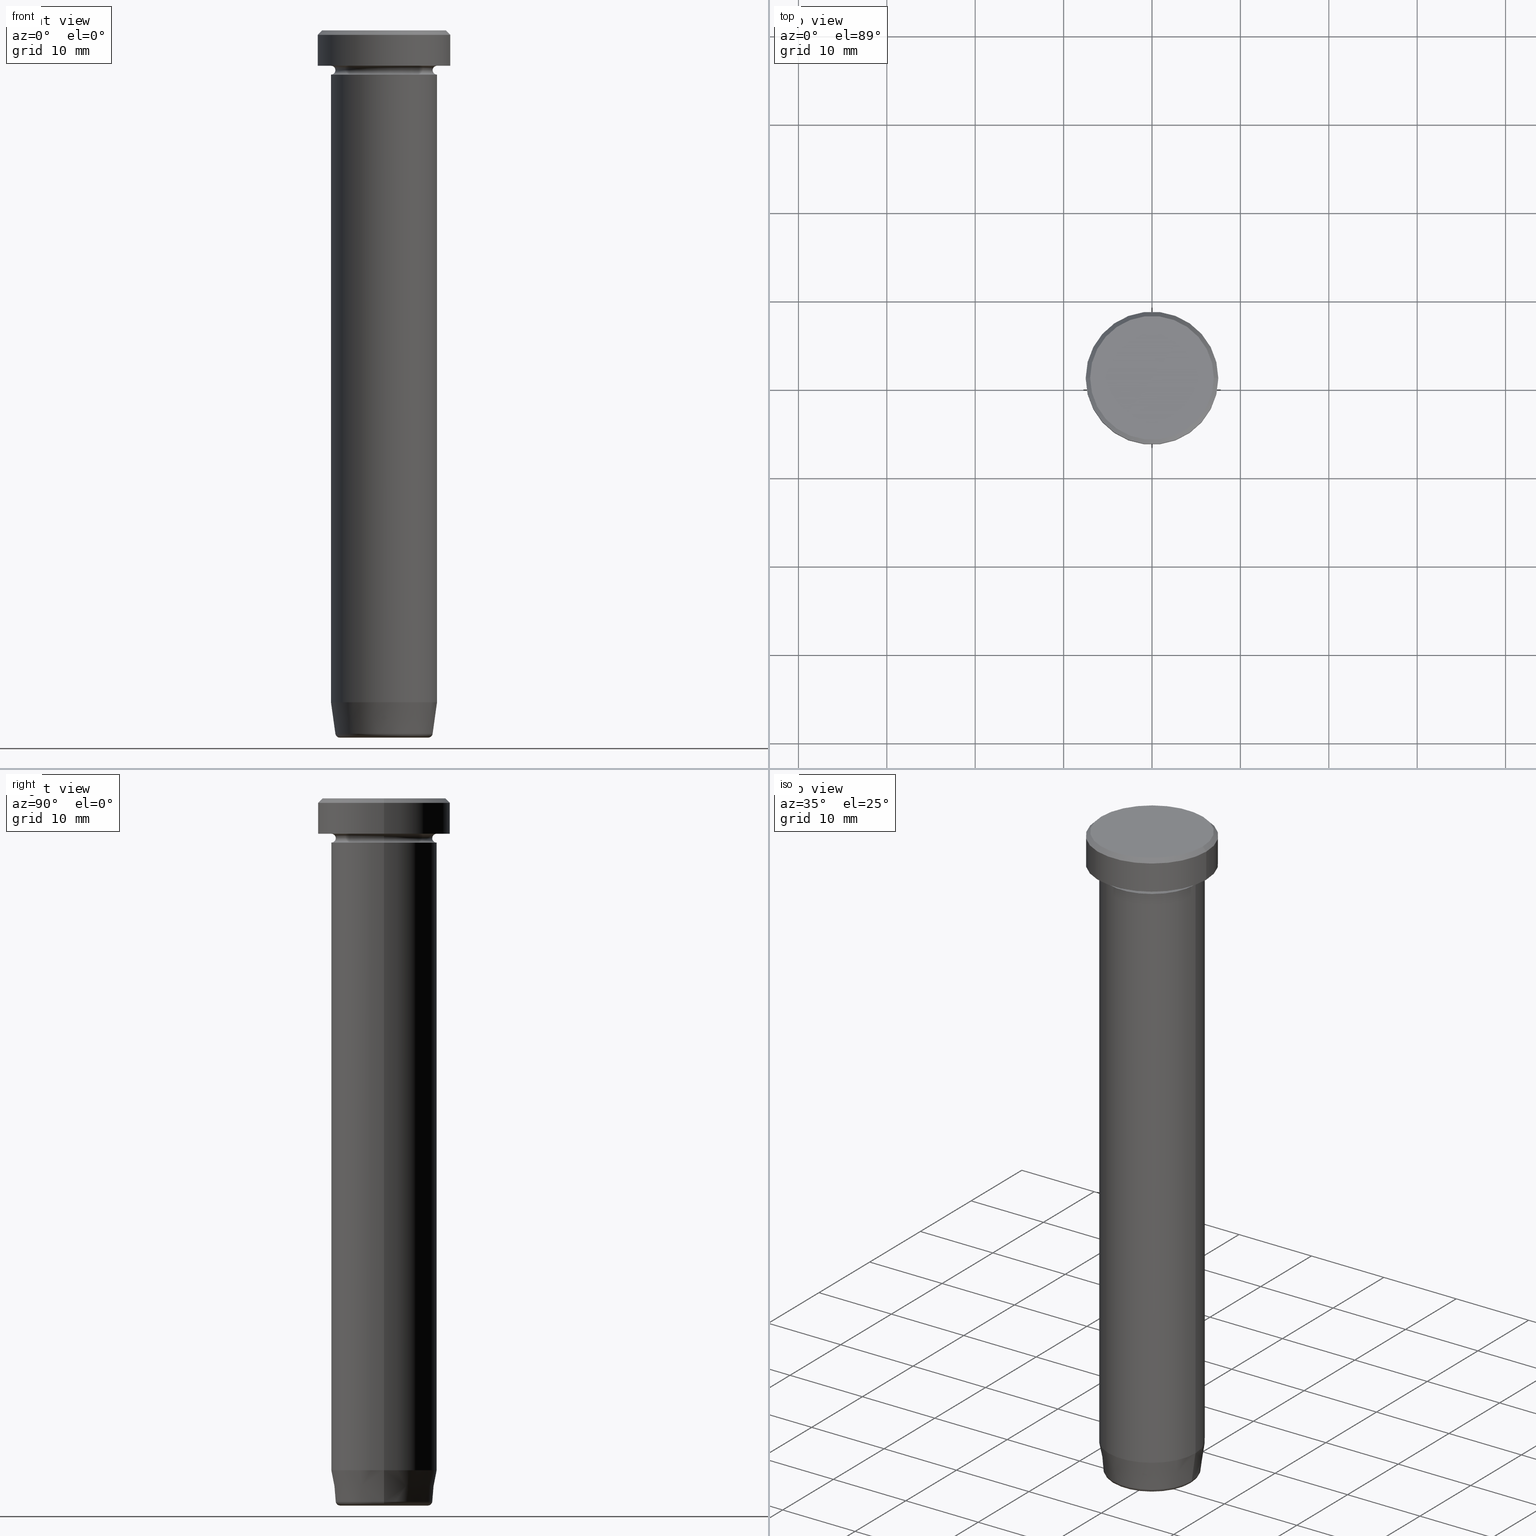
[diagram: canonical four-view strip — front | top / right | iso, engineering-drawing reading convention]
A machine part, canonical four-view strip (front | top / right | iso — engineering-drawing reading convention). The complete STEP part file that produces these views, byte-faithful:
ISO-10303-21;
HEADER;
FILE_DESCRIPTION (( 'STEP AP203' ),
    '1' );
FILE_NAME ('a212.STEP',
    '2024-01-02T19:35:52',
    ( '' ),
    ( '' ),
    'SwSTEP 2.0',
    'SolidWorks 2019',
    '' );
FILE_SCHEMA (( 'CONFIG_CONTROL_DESIGN' ));
ENDSEC;

DATA;
#1 = EDGE_CURVE ( 'NONE', #280, #587, #499, .T. ) ;
#2 = CONICAL_SURFACE ( 'NONE', #457, 7.000000000000001776, 0.7853981633974473908 ) ;
#3 = FACE_OUTER_BOUND ( 'NONE', #372, .T. ) ;
#4 = ORIENTED_EDGE ( 'NONE', *, *, #296, .F. ) ;
#5 = DIRECTION ( 'NONE',  ( 1.000000000000000000, 0.000000000000000000, 0.000000000000000000 ) ) ;
#6 = DIRECTION ( 'NONE',  ( -0.000000000000000000, -0.000000000000000000, 1.000000000000000000 ) ) ;
#7 = DIRECTION ( 'NONE',  ( 1.000000000000000000, 0.000000000000000000, 0.000000000000000000 ) ) ;
#8 = DIRECTION ( 'NONE',  ( 1.000000000000000000, 0.000000000000000000, 0.000000000000000000 ) ) ;
#9 = DIRECTION ( 'NONE',  ( 0.000000000000000000, -1.000000000000000000, 0.000000000000000000 ) ) ;
#10 = ORIENTED_EDGE ( 'NONE', *, *, #594, .T. ) ;
#11 = DIRECTION ( 'NONE',  ( 1.000000000000000000, 0.000000000000000000, 0.000000000000000000 ) ) ;
#12 = FACE_OUTER_BOUND ( 'NONE', #202, .T. ) ;
#13 = EDGE_CURVE ( 'NONE', #587, #280, #412, .T. ) ;
#14 = CARTESIAN_POINT ( 'NONE',  ( 7.500000000000000000, 0.000000000000000000, 0.000000000000000000 ) ) ;
#15 = VECTOR ( 'NONE', #259, 1000.000000000000000 ) ;
#16 = CARTESIAN_POINT ( 'NONE',  ( 0.000000000000000000, 0.000000000000000000, -80.00000000000000000 ) ) ;
#17 = COORDINATED_UNIVERSAL_TIME_OFFSET ( 1, 0, .AHEAD. ) ;
#18 = EDGE_LOOP ( 'NONE', ( #558, #481 ) ) ;
#19 = DIRECTION ( 'NONE',  ( 1.000000000000000000, 0.000000000000000000, 0.000000000000000000 ) ) ;
#20 = DIRECTION ( 'NONE',  ( -0.000000000000000000, -0.000000000000000000, 1.000000000000000000 ) ) ;
#21 = DATE_AND_TIME ( #70, #547 ) ;
#22 = ORIENTED_EDGE ( 'NONE', *, *, #323, .F. ) ;
#23 = DIRECTION ( 'NONE',  ( -1.000000000000000000, 1.224646799147351482E-16, 0.000000000000000000 ) ) ;
#24 = EDGE_CURVE ( 'NONE', #36, #119, #193, .T. ) ;
#25 = CARTESIAN_POINT ( 'NONE',  ( 0.000000000000000000, 0.000000000000000000, 0.000000000000000000 ) ) ;
#26 = ORIENTED_EDGE ( 'NONE', *, *, #510, .T. ) ;
#27 = DIRECTION ( 'NONE',  ( -0.000000000000000000, -0.000000000000000000, 1.000000000000000000 ) ) ;
#28 = VECTOR ( 'NONE', #395, 1000.000000000000000 ) ;
#29 = PERSON_AND_ORGANIZATION ( #139, #192 ) ;
#30 = CC_DESIGN_APPROVAL ( #402, ( #538 ) ) ;
#31 = DIRECTION ( 'NONE',  ( 1.000000000000000000, 0.000000000000000000, 0.000000000000000000 ) ) ;
#32 = ORIENTED_EDGE ( 'NONE', *, *, #347, .T. ) ;
#33 = DIRECTION ( 'NONE',  ( 0.1391731009600656876, 0.000000000000000000, 0.9902680687415703620 ) ) ;
#34 = CIRCLE ( 'NONE', #170, 7.500000000000000000 ) ;
#35 = CIRCLE ( 'NONE', #155, 7.500000000000000000 ) ;
#36 = VERTEX_POINT ( 'NONE', #418 ) ;
#37 = AXIS2_PLACEMENT_3D ( 'NONE', #361, #88, #429 ) ;
#38 = DIRECTION ( 'NONE',  ( -0.000000000000000000, -0.000000000000000000, 1.000000000000000000 ) ) ;
#39 = SHAPE_DEFINITION_REPRESENTATION ( #443, #452 ) ;
#40 = ORIENTED_EDGE ( 'NONE', *, *, #164, .F. ) ;
#41 = LINE ( 'NONE', #85, #15 ) ;
#42 = CARTESIAN_POINT ( 'NONE',  ( 0.000000000000000000, 0.000000000000000000, -17.00000000000000000 ) ) ;
#43 = CARTESIAN_POINT ( 'NONE',  ( 0.000000000000000000, 0.000000000000000000, -4.500000000000000888 ) ) ;
#44 = ADVANCED_FACE ( 'NONE', ( #3 ), #147, .T. ) ;
#45 = DATE_TIME_ROLE ( 'creation_date' ) ;
#46 = CLOSED_SHELL ( 'NONE', ( #317, #428, #542, #472, #591, #237, #90, #117 ) ) ;
#47 = CIRCLE ( 'NONE', #384, 5.500000000000000000 ) ;
#48 = VERTEX_POINT ( 'NONE', #536 ) ;
#49 = AXIS2_PLACEMENT_3D ( 'NONE', #103, #485, #66 ) ;
#50 = APPROVAL_PERSON_ORGANIZATION ( #29, #369, #207 ) ;
#51 = EDGE_LOOP ( 'NONE', ( #58, #212, #109, #407 ) ) ;
#52 = EDGE_CURVE ( 'NONE', #575, #363, #463, .T. ) ;
#53 = CARTESIAN_POINT ( 'NONE',  ( -5.437836661190432963, 6.659429261412994003E-16, -80.00000000000000000 ) ) ;
#54 = ORIENTED_EDGE ( 'NONE', *, *, #347, .F. ) ;
#55 = VECTOR ( 'NONE', #376, 1000.000000000000000 ) ;
#56 = APPLICATION_CONTEXT ( 'configuration controlled 3d designs of mechanical parts and assemblies' ) ;
#57 = CARTESIAN_POINT ( 'NONE',  ( 0.000000000000000000, 0.000000000000000000, -79.50000000000000000 ) ) ;
#58 = ORIENTED_EDGE ( 'NONE', *, *, #83, .T. ) ;
#59 = AXIS2_PLACEMENT_3D ( 'NONE', #561, #206, #531 ) ;
#60 =( GEOMETRIC_REPRESENTATION_CONTEXT ( 3 ) GLOBAL_UNCERTAINTY_ASSIGNED_CONTEXT ( ( #100 ) ) GLOBAL_UNIT_ASSIGNED_CONTEXT ( ( #478, #182, #364 ) ) REPRESENTATION_CONTEXT ( 'NONE', 'WORKASPACE' ) );
#61 = ORIENTED_EDGE ( 'NONE', *, *, #519, .T. ) ;
#62 = DIRECTION ( 'NONE',  ( 1.000000000000000000, 0.000000000000000000, 0.000000000000000000 ) ) ;
#63 = CARTESIAN_POINT ( 'NONE',  ( 5.498327326653105196, 0.000000000000000000, -79.56958655048005369 ) ) ;
#64 = ORIENTED_EDGE ( 'NONE', *, *, #217, .F. ) ;
#65 = DIRECTION ( 'NONE',  ( -0.000000000000000000, -0.000000000000000000, 1.000000000000000000 ) ) ;
#66 = DIRECTION ( 'NONE',  ( 1.000000000000000000, 0.000000000000000000, 0.000000000000000000 ) ) ;
#67 = COORDINATED_UNIVERSAL_TIME_OFFSET ( 1, 0, .AHEAD. ) ;
#68 = ORIENTED_EDGE ( 'NONE', *, *, #132, .T. ) ;
#69 = AXIS2_PLACEMENT_3D ( 'NONE', #581, #570, #23 ) ;
#70 = CALENDAR_DATE ( 2024, 2, 1 ) ;
#71 = EDGE_CURVE ( 'NONE', #363, #339, #197, .T. ) ;
#72 = CARTESIAN_POINT ( 'NONE',  ( 0.000000000000000000, 0.000000000000000000, 0.000000000000000000 ) ) ;
#73 = VERTEX_POINT ( 'NONE', #196 ) ;
#74 = DIRECTION ( 'NONE',  ( -1.000000000000000000, 0.000000000000000000, 0.000000000000000000 ) ) ;
#75 = DIRECTION ( 'NONE',  ( -0.000000000000000000, -0.000000000000000000, 1.000000000000000000 ) ) ;
#76 = DIRECTION ( 'NONE',  ( 1.000000000000000000, 0.000000000000000000, 0.000000000000000000 ) ) ;
#77 = DIRECTION ( 'NONE',  ( -0.7071067811865469066, 0.000000000000000000, -0.7071067811865481278 ) ) ;
#78 = TOROIDAL_SURFACE ( 'NONE', #227, 6.000000000000000000, 0.5000000000000000000 ) ;
#79 = APPLICATION_PROTOCOL_DEFINITION ( 'international standard', 'config_control_design', 1994, #56 ) ;
#80 = DIRECTION ( 'NONE',  ( -1.000000000000000000, 0.000000000000000000, -0.000000000000000000 ) ) ;
#81 = DIRECTION ( 'NONE',  ( 1.000000000000000000, 0.000000000000000000, 0.000000000000000000 ) ) ;
#82 = ORIENTED_EDGE ( 'NONE', *, *, #308, .T. ) ;
#83 = EDGE_CURVE ( 'NONE', #224, #36, #34, .T. ) ;
#84 = VERTEX_POINT ( 'NONE', #154 ) ;
#85 = CARTESIAN_POINT ( 'NONE',  ( 6.000000000000000000, 0.000000000000000000, 0.000000000000000000 ) ) ;
#86 = VECTOR ( 'NONE', #568, 1000.000000000000114 ) ;
#87 = EDGE_LOOP ( 'NONE', ( #444, #306 ) ) ;
#88 = DIRECTION ( 'NONE',  ( -0.000000000000000000, -0.000000000000000000, 1.000000000000000000 ) ) ;
#89 = DIRECTION ( 'NONE',  ( -0.000000000000000000, -0.000000000000000000, 1.000000000000000000 ) ) ;
#90 = ADVANCED_FACE ( 'NONE', ( #331 ), #118, .F. ) ;
#91 = CARTESIAN_POINT ( 'NONE',  ( 0.000000000000000000, 0.000000000000000000, -4.500000000000000888 ) ) ;
#92 = DIRECTION ( 'NONE',  ( -1.000000000000000000, 0.000000000000000000, 0.000000000000000000 ) ) ;
#93 = DIRECTION ( 'NONE',  ( 1.000000000000000000, 0.000000000000000000, 0.000000000000000000 ) ) ;
#94 = AXIS2_PLACEMENT_3D ( 'NONE', #441, #571, #335 ) ;
#95 = ORIENTED_EDGE ( 'NONE', *, *, #326, .F. ) ;
#96 = EDGE_CURVE ( 'NONE', #258, #180, #144, .T. ) ;
#97 = CARTESIAN_POINT ( 'NONE',  ( 0.000000000000000000, 0.000000000000000000, -17.00000000000000000 ) ) ;
#98 = CIRCLE ( 'NONE', #209, 0.5000000000000004441 ) ;
#99 = ORIENTED_EDGE ( 'NONE', *, *, #486, .F. ) ;
#100 = UNCERTAINTY_MEASURE_WITH_UNIT (LENGTH_MEASURE( 1.000000000000000082E-05 ), #478, 'distance_accuracy_value', 'NONE');
#101 = EDGE_CURVE ( 'NONE', #352, #166, #136, .T. ) ;
#102 = AXIS2_PLACEMENT_3D ( 'NONE', #120, #497, #247 ) ;
#103 = CARTESIAN_POINT ( 'NONE',  ( 0.000000000000000000, 0.000000000000000000, 0.000000000000000000 ) ) ;
#104 = CARTESIAN_POINT ( 'NONE',  ( 0.000000000000000000, 0.000000000000000000, -0.4999999999999987232 ) ) ;
#105 = DIRECTION ( 'NONE',  ( -0.000000000000000000, -1.000000000000000000, -0.000000000000000000 ) ) ;
#106 = VERTEX_POINT ( 'NONE', #589 ) ;
#107 = CC_DESIGN_PERSON_AND_ORGANIZATION_ASSIGNMENT ( #246, #338, ( #436 ) ) ;
#108 = CYLINDRICAL_SURFACE ( 'NONE', #374, 6.000000000000000000 ) ;
#109 = ORIENTED_EDGE ( 'NONE', *, *, #488, .T. ) ;
#110 = DIRECTION ( 'NONE',  ( -0.000000000000000000, -0.000000000000000000, 1.000000000000000000 ) ) ;
#111 = CALENDAR_DATE ( 2024, 2, 1 ) ;
#112 = ADVANCED_FACE ( 'NONE', ( #348, #260 ), #447, .T. ) ;
#113 = CARTESIAN_POINT ( 'NONE',  ( 6.000000000000000000, 0.000000000000000000, -4.500000000000000888 ) ) ;
#114 = EDGE_LOOP ( 'NONE', ( #245, #26 ) ) ;
#115 = DIRECTION ( 'NONE',  ( 0.000000000000000000, 0.000000000000000000, -1.000000000000000000 ) ) ;
#116 = AXIS2_PLACEMENT_3D ( 'NONE', #290, #65, #19 ) ;
#117 = ADVANCED_FACE ( 'NONE', ( #127 ), #172, .T. ) ;
#118 = PLANE ( 'NONE',  #244 ) ;
#119 = VERTEX_POINT ( 'NONE', #504 ) ;
#120 = CARTESIAN_POINT ( 'NONE',  ( 0.000000000000000000, 0.000000000000000000, 0.000000000000000000 ) ) ;
#121 = PERSON_AND_ORGANIZATION ( #139, #192 ) ;
#122 = EDGE_LOOP ( 'NONE', ( #99, #68, #511, #286 ) ) ;
#123 = DIRECTION ( 'NONE',  ( -1.000000000000000000, 0.000000000000000000, 0.000000000000000000 ) ) ;
#124 = CARTESIAN_POINT ( 'NONE',  ( 7.000000000000001776, 8.878689293818310074E-16, 0.000000000000000000 ) ) ;
#125 = DATE_AND_TIME ( #111, #219 ) ;
#126 = PERSON_AND_ORGANIZATION_ROLE ( 'design_owner' ) ;
#127 = FACE_OUTER_BOUND ( 'NONE', #210, .T. ) ;
#128 = ORIENTED_EDGE ( 'NONE', *, *, #552, .F. ) ;
#129 = LINE ( 'NONE', #502, #387 ) ;
#130 = DATE_TIME_ROLE ( 'classification_date' ) ;
#131 = AXIS2_PLACEMENT_3D ( 'NONE', #509, #263, #151 ) ;
#132 = EDGE_CURVE ( 'NONE', #575, #321, #47, .T. ) ;
#133 = AXIS2_PLACEMENT_3D ( 'NONE', #300, #220, #81 ) ;
#134 = LOCAL_TIME ( 20, 35, 52.00000000000000000, #17 ) ;
#135 = CARTESIAN_POINT ( 'NONE',  ( -6.000000000000000000, 0.000000000000000000, -4.500000000000000888 ) ) ;
#136 = LINE ( 'NONE', #140, #371 ) ;
#137 = ORIENTED_EDGE ( 'NONE', *, *, #278, .F. ) ;
#138 = CALENDAR_DATE ( 2024, 2, 1 ) ;
#139 = PERSON ( 'NEUR�EN�', 'NEUR�EN�', 'NEUR�EN�', ('NEUR�EN�'), ('NEUR�EN�'), ('NEUR�EN�') ) ;
#140 = CARTESIAN_POINT ( 'NONE',  ( -6.000000000000000000, 7.347880794884119736E-16, 0.000000000000000000 ) ) ;
#141 = ORIENTED_EDGE ( 'NONE', *, *, #261, .F. ) ;
#142 = DIRECTION ( 'NONE',  ( 0.000000000000000000, 0.000000000000000000, -1.000000000000000000 ) ) ;
#143 = CIRCLE ( 'NONE', #475, 6.000000000000000000 ) ;
#144 = CIRCLE ( 'NONE', #213, 5.498327326653105196 ) ;
#145 = CARTESIAN_POINT ( 'NONE',  ( 0.000000000000000000, 0.000000000000000000, -17.00000000000000000 ) ) ;
#146 = DIRECTION ( 'NONE',  ( 0.000000000000000000, 0.000000000000000000, -1.000000000000000000 ) ) ;
#147 = CYLINDRICAL_SURFACE ( 'NONE', #378, 7.500000000000000000 ) ;
#148 = CIRCLE ( 'NONE', #330, 6.000000000000000000 ) ;
#149 = CC_DESIGN_DATE_AND_TIME_ASSIGNMENT ( #21, #45, ( #422 ) ) ;
#150 = AXIS2_PLACEMENT_3D ( 'NONE', #97, #375, #7 ) ;
#151 = DIRECTION ( 'NONE',  ( -1.000000000000000000, 0.000000000000000000, 0.000000000000000000 ) ) ;
#152 = CARTESIAN_POINT ( 'NONE',  ( 0.000000000000000000, 0.000000000000000000, -76.00000000000000000 ) ) ;
#153 = APPLICATION_PROTOCOL_DEFINITION ( 'international standard', 'config_control_design', 1994, #181 ) ;
#154 = CARTESIAN_POINT ( 'NONE',  ( 7.500000000000000000, 0.000000000000000000, -0.4999999999999987232 ) ) ;
#155 = AXIS2_PLACEMENT_3D ( 'NONE', #104, #157, #346 ) ;
#156 = CARTESIAN_POINT ( 'NONE',  ( -6.000000000000000000, 7.347880794884119736E-16, -76.00000000000000000 ) ) ;
#157 = DIRECTION ( 'NONE',  ( 0.000000000000000000, 0.000000000000000000, -1.000000000000000000 ) ) ;
#158 = ORIENTED_EDGE ( 'NONE', *, *, #132, .F. ) ;
#159 = AXIS2_PLACEMENT_3D ( 'NONE', #113, #9, #490 ) ;
#160 = CALENDAR_DATE ( 2024, 2, 1 ) ;
#161 = DIRECTION ( 'NONE',  ( -0.000000000000000000, -0.000000000000000000, 1.000000000000000000 ) ) ;
#162 = ORIENTED_EDGE ( 'NONE', *, *, #71, .F. ) ;
#163 = CIRCLE ( 'NONE', #173, 6.000000000000000000 ) ;
#164 = EDGE_CURVE ( 'NONE', #587, #339, #470, .T. ) ;
#165 = DIRECTION ( 'NONE',  ( -1.000000000000000000, -1.224646799147351482E-16, 0.000000000000000000 ) ) ;
#166 = VERTEX_POINT ( 'NONE', #377 ) ;
#167 = CYLINDRICAL_SURFACE ( 'NONE', #229, 6.000000000000000000 ) ;
#168 = ORIENTED_EDGE ( 'NONE', *, *, #261, .T. ) ;
#169 = CARTESIAN_POINT ( 'NONE',  ( 0.000000000000000000, 0.000000000000000000, 0.000000000000000000 ) ) ;
#170 = AXIS2_PLACEMENT_3D ( 'NONE', #380, #161, #343 ) ;
#171 = ORIENTED_EDGE ( 'NONE', *, *, #1, .T. ) ;
#172 = TOROIDAL_SURFACE ( 'NONE', #302, 5.003193292282319682, 0.5000000000000000000 ) ;
#173 = AXIS2_PLACEMENT_3D ( 'NONE', #557, #480, #225 ) ;
#174 = PERSON_AND_ORGANIZATION ( #139, #192 ) ;
#175 = CC_DESIGN_APPROVAL ( #283, ( #436 ) ) ;
#176 = ORIENTED_EDGE ( 'NONE', *, *, #419, .F. ) ;
#177 = FACE_OUTER_BOUND ( 'NONE', #506, .T. ) ;
#178 = ADVANCED_FACE ( 'NONE', ( #442 ), #397, .F. ) ;
#179 = CARTESIAN_POINT ( 'NONE',  ( 0.000000000000000000, 0.000000000000000000, -79.56958655048005369 ) ) ;
#180 = VERTEX_POINT ( 'NONE', #550 ) ;
#181 = APPLICATION_CONTEXT ( 'configuration controlled 3d designs of mechanical parts and assemblies' ) ;
#182 =( NAMED_UNIT ( * ) PLANE_ANGLE_UNIT ( ) SI_UNIT ( $, .RADIAN. ) );
#183 = PERSON_AND_ORGANIZATION ( #139, #192 ) ;
#184 = CIRCLE ( 'NONE', #116, 7.500000000000000000 ) ;
#185 = LINE ( 'NONE', #187, #251 ) ;
#186 = DIRECTION ( 'NONE',  ( 1.000000000000000000, 0.000000000000000000, 0.000000000000000000 ) ) ;
#187 = CARTESIAN_POINT ( 'NONE',  ( 6.000000000000000000, 0.000000000000000000, 0.000000000000000000 ) ) ;
#188 = ORIENTED_EDGE ( 'NONE', *, *, #101, .T. ) ;
#189 = CARTESIAN_POINT ( 'NONE',  ( -6.000000000000000000, 7.347880794884119736E-16, 0.000000000000000000 ) ) ;
#190 = EDGE_LOOP ( 'NONE', ( #494, #82, #22, #128 ) ) ;
#191 = CIRCLE ( 'NONE', #505, 5.003193292282319682 ) ;
#192 = ORGANIZATION ( 'NEUR�EN�', 'NEUR�EN�', '' ) ;
#193 = LINE ( 'NONE', #469, #55 ) ;
#194 = FACE_OUTER_BOUND ( 'NONE', #580, .T. ) ;
#195 = DIRECTION ( 'NONE',  ( -0.000000000000000000, -0.000000000000000000, 1.000000000000000000 ) ) ;
#196 = CARTESIAN_POINT ( 'NONE',  ( 5.003193292282319682, 0.000000000000000000, -80.00000000000000000 ) ) ;
#197 = CIRCLE ( 'NONE', #94, 6.000000000000000000 ) ;
#198 = ORIENTED_EDGE ( 'NONE', *, *, #342, .F. ) ;
#199 = DIRECTION ( 'NONE',  ( 1.000000000000000000, 0.000000000000000000, 0.000000000000000000 ) ) ;
#200 = AXIS2_PLACEMENT_3D ( 'NONE', #228, #146, #273 ) ;
#201 = VECTOR ( 'NONE', #33, 999.9999999999998863 ) ;
#202 = EDGE_LOOP ( 'NONE', ( #40, #320, #530, #590 ) ) ;
#203 = DIRECTION ( 'NONE',  ( 0.000000000000000000, 0.000000000000000000, -1.000000000000000000 ) ) ;
#204 = DIRECTION ( 'NONE',  ( -0.000000000000000000, -0.000000000000000000, 1.000000000000000000 ) ) ;
#205 = ORIENTED_EDGE ( 'NONE', *, *, #328, .F. ) ;
#206 = DIRECTION ( 'NONE',  ( 0.000000000000000000, 0.000000000000000000, -1.000000000000000000 ) ) ;
#207 = APPROVAL_ROLE ( '' ) ;
#208 = FACE_OUTER_BOUND ( 'NONE', #518, .T. ) ;
#209 = AXIS2_PLACEMENT_3D ( 'NONE', #294, #396, #165 ) ;
#210 = EDGE_LOOP ( 'NONE', ( #4, #205, #262, #507 ) ) ;
#211 = CARTESIAN_POINT ( 'NONE',  ( 0.000000000000000000, 7.500000000000000000, -4.000000000000000000 ) ) ;
#212 = ORIENTED_EDGE ( 'NONE', *, *, #24, .T. ) ;
#213 = AXIS2_PLACEMENT_3D ( 'NONE', #179, #359, #545 ) ;
#214 = ORIENTED_EDGE ( 'NONE', *, *, #586, .T. ) ;
#215 = CARTESIAN_POINT ( 'NONE',  ( 0.000000000000000000, 0.000000000000000000, -80.00000000000000000 ) ) ;
#216 = EDGE_CURVE ( 'NONE', #357, #585, #143, .T. ) ;
#217 = EDGE_CURVE ( 'NONE', #106, #484, #41, .T. ) ;
#218 = AXIS2_PLACEMENT_3D ( 'NONE', #533, #75, #573 ) ;
#219 = LOCAL_TIME ( 20, 35, 52.00000000000000000, #535 ) ;
#220 = DIRECTION ( 'NONE',  ( -0.000000000000000000, -0.000000000000000000, 1.000000000000000000 ) ) ;
#221 = VERTEX_POINT ( 'NONE', #318 ) ;
#222 = CARTESIAN_POINT ( 'NONE',  ( 7.500000000000000000, 0.000000000000000000, -4.000000000000000000 ) ) ;
#223 = ADVANCED_FACE ( 'NONE', ( #177 ), #2, .T. ) ;
#224 = VERTEX_POINT ( 'NONE', #222 ) ;
#225 = DIRECTION ( 'NONE',  ( 1.000000000000000000, 0.000000000000000000, 0.000000000000000000 ) ) ;
#226 = CALENDAR_DATE ( 2024, 2, 1 ) ;
#227 = AXIS2_PLACEMENT_3D ( 'NONE', #43, #142, #313 ) ;
#228 = CARTESIAN_POINT ( 'NONE',  ( 0.000000000000000000, 6.000000000000000000, -17.00000000000000000 ) ) ;
#229 = AXIS2_PLACEMENT_3D ( 'NONE', #169, #508, #349 ) ;
#230 = EDGE_CURVE ( 'NONE', #546, #48, #281, .T. ) ;
#231 = ORIENTED_EDGE ( 'NONE', *, *, #539, .F. ) ;
#232 = CARTESIAN_POINT ( 'NONE',  ( -5.003193292282319682, 6.127144650909050131E-16, -79.50000000000000000 ) ) ;
#233 = ORIENTED_EDGE ( 'NONE', *, *, #308, .F. ) ;
#234 = DIRECTION ( 'NONE',  ( 0.000000000000000000, 0.000000000000000000, -1.000000000000000000 ) ) ;
#235 = ORIENTED_EDGE ( 'NONE', *, *, #567, .F. ) ;
#236 = CIRCLE ( 'NONE', #592, 0.5000000000000004441 ) ;
#237 = ADVANCED_FACE ( 'NONE', ( #353 ), #465, .T. ) ;
#238 = CARTESIAN_POINT ( 'NONE',  ( 0.000000000000000000, 0.000000000000000000, -76.00000000000000000 ) ) ;
#239 = EDGE_LOOP ( 'NONE', ( #231, #291, #250, #464 ) ) ;
#240 = CARTESIAN_POINT ( 'NONE',  ( 0.000000000000000000, 0.000000000000000000, -4.500000000000000888 ) ) ;
#241 = SECURITY_CLASSIFICATION_LEVEL ( 'unclassified' ) ;
#242 = CARTESIAN_POINT ( 'NONE',  ( 0.000000000000000000, 0.000000000000000000, -17.00000000000000000 ) ) ;
#243 = CARTESIAN_POINT ( 'NONE',  ( 0.000000000000000000, 3.469446951953614189E-15, -80.00000000000000000 ) ) ;
#244 = AXIS2_PLACEMENT_3D ( 'NONE', #243, #295, #493 ) ;
#245 = ORIENTED_EDGE ( 'NONE', *, *, #328, .T. ) ;
#246 = PERSON_AND_ORGANIZATION ( #139, #192 ) ;
#247 = DIRECTION ( 'NONE',  ( -1.000000000000000000, 0.000000000000000000, 0.000000000000000000 ) ) ;
#248 = DIRECTION ( 'NONE',  ( 0.000000000000000000, 0.000000000000000000, -1.000000000000000000 ) ) ;
#249 = ADVANCED_FACE ( 'NONE', ( #439 ), #267, .F. ) ;
#250 = ORIENTED_EDGE ( 'NONE', *, *, #354, .T. ) ;
#251 = VECTOR ( 'NONE', #368, 1000.000000000000000 ) ;
#252 = CYLINDRICAL_SURFACE ( 'NONE', #218, 6.000000000000000000 ) ;
#253 = ORIENTED_EDGE ( 'NONE', *, *, #551, .T. ) ;
#254 = ORIENTED_EDGE ( 'NONE', *, *, #101, .F. ) ;
#255 = CC_DESIGN_DATE_AND_TIME_ASSIGNMENT ( #125, #130, ( #436 ) ) ;
#256 = PERSON_AND_ORGANIZATION ( #139, #192 ) ;
#257 = CARTESIAN_POINT ( 'NONE',  ( 0.000000000000000000, 0.000000000000000000, -79.50000000000000000 ) ) ;
#258 = VERTEX_POINT ( 'NONE', #63 ) ;
#259 = DIRECTION ( 'NONE',  ( -0.000000000000000000, -0.000000000000000000, 1.000000000000000000 ) ) ;
#260 = FACE_OUTER_BOUND ( 'NONE', #18, .T. ) ;
#261 = EDGE_CURVE ( 'NONE', #484, #166, #163, .T. ) ;
#262 = ORIENTED_EDGE ( 'NONE', *, *, #419, .T. ) ;
#263 = DIRECTION ( 'NONE',  ( 0.000000000000000000, 0.000000000000000000, -1.000000000000000000 ) ) ;
#264 = AXIS2_PLACEMENT_3D ( 'NONE', #211, #543, #80 ) ;
#265 = ORIENTED_EDGE ( 'NONE', *, *, #488, .F. ) ;
#266 = DIRECTION ( 'NONE',  ( 1.000000000000000000, 0.000000000000000000, 0.000000000000000000 ) ) ;
#267 = TOROIDAL_SURFACE ( 'NONE', #529, 6.000000000000000000, 0.5000000000000000000 ) ;
#268 = CC_DESIGN_SECURITY_CLASSIFICATION ( #436, ( #538 ) ) ;
#269 = CARTESIAN_POINT ( 'NONE',  ( 0.000000000000000000, 0.000000000000000000, 0.000000000000000000 ) ) ;
#270 = PLANE ( 'NONE',  #314 ) ;
#271 = DESIGN_CONTEXT ( 'detailed design', #56, 'design' ) ;
#272 = ADVANCED_FACE ( 'NONE', ( #597 ), #78, .F. ) ;
#273 = DIRECTION ( 'NONE',  ( -1.000000000000000000, 0.000000000000000000, -0.000000000000000000 ) ) ;
#274 = CIRCLE ( 'NONE', #435, 7.500000000000000000 ) ;
#275 = CIRCLE ( 'NONE', #37, 7.000000000000001776 ) ;
#276 = DIRECTION ( 'NONE',  ( 1.000000000000000000, 0.000000000000000000, 0.000000000000000000 ) ) ;
#277 = ADVANCED_FACE ( 'NONE', ( #516 ), #270, .T. ) ;
#278 = EDGE_CURVE ( 'NONE', #546, #84, #468, .T. ) ;
#279 = CARTESIAN_POINT ( 'NONE',  ( 6.000000000000000000, 7.347880794884119736E-16, -4.000000000000000000 ) ) ;
#280 = VERTEX_POINT ( 'NONE', #327 ) ;
#281 = CIRCLE ( 'NONE', #385, 7.000000000000001776 ) ;
#282 = LOCAL_TIME ( 20, 35, 52.00000000000000000, #304 ) ;
#283 = APPROVAL ( #595, 'NEUR�EN�' ) ;
#284 = FACE_OUTER_BOUND ( 'NONE', #556, .T. ) ;
#285 = PLANE ( 'NONE',  #292 ) ;
#286 = ORIENTED_EDGE ( 'NONE', *, *, #381, .F. ) ;
#287 = CARTESIAN_POINT ( 'NONE',  ( 0.000000000000000000, 0.000000000000000000, 0.000000000000000000 ) ) ;
#288 = AXIS2_PLACEMENT_3D ( 'NONE', #145, #520, #276 ) ;
#289 = ORIENTED_EDGE ( 'NONE', *, *, #278, .T. ) ;
#290 = CARTESIAN_POINT ( 'NONE',  ( 0.000000000000000000, 0.000000000000000000, -4.000000000000000000 ) ) ;
#291 = ORIENTED_EDGE ( 'NONE', *, *, #342, .T. ) ;
#292 = AXIS2_PLACEMENT_3D ( 'NONE', #242, #248, #432 ) ;
#293 = CIRCLE ( 'NONE', #316, 5.500000000000000000 ) ;
#294 = CARTESIAN_POINT ( 'NONE',  ( 6.000000000000000000, 7.347880794884119736E-16, -4.500000000000000888 ) ) ;
#295 = DIRECTION ( 'NONE',  ( 0.000000000000000000, -0.000000000000000000, 1.000000000000000000 ) ) ;
#296 = EDGE_CURVE ( 'NONE', #221, #180, #414, .T. ) ;
#297 = PERSON_AND_ORGANIZATION_ROLE ( 'design_supplier' ) ;
#298 = EDGE_LOOP ( 'NONE', ( #168, #10 ) ) ;
#299 = MECHANICAL_CONTEXT ( 'NONE', #181, 'mechanical' ) ;
#300 = CARTESIAN_POINT ( 'NONE',  ( 0.000000000000000000, 0.000000000000000000, -4.500000000000000888 ) ) ;
#301 = ORIENTED_EDGE ( 'NONE', *, *, #230, .F. ) ;
#302 = AXIS2_PLACEMENT_3D ( 'NONE', #257, #450, #31 ) ;
#303 = AXIS2_PLACEMENT_3D ( 'NONE', #232, #524, #564 ) ;
#304 = COORDINATED_UNIVERSAL_TIME_OFFSET ( 1, 0, .AHEAD. ) ;
#305 = ADVANCED_FACE ( 'NONE', ( #471 ), #421, .T. ) ;
#306 = ORIENTED_EDGE ( 'NONE', *, *, #13, .F. ) ;
#307 = CARTESIAN_POINT ( 'NONE',  ( 0.000000000000000000, 0.000000000000000000, 0.000000000000000000 ) ) ;
#308 = EDGE_CURVE ( 'NONE', #180, #352, #425, .T. ) ;
#309 = ORIENTED_EDGE ( 'NONE', *, *, #381, .T. ) ;
#310 = DATE_AND_TIME ( #138, #324 ) ;
#311 = CC_DESIGN_PERSON_AND_ORGANIZATION_ASSIGNMENT ( #578, #297, ( #538 ) ) ;
#312 = ORIENTED_EDGE ( 'NONE', *, *, #216, .T. ) ;
#313 = DIRECTION ( 'NONE',  ( -1.000000000000000000, 0.000000000000000000, 0.000000000000000000 ) ) ;
#314 = AXIS2_PLACEMENT_3D ( 'NONE', #427, #460, #479 ) ;
#315 = AXIS2_PLACEMENT_3D ( 'NONE', #329, #577, #388 ) ;
#316 = AXIS2_PLACEMENT_3D ( 'NONE', #445, #27, #549 ) ;
#317 = ADVANCED_FACE ( 'NONE', ( #526 ), #583, .T. ) ;
#318 = CARTESIAN_POINT ( 'NONE',  ( -5.003193292282319682, 6.430326806079598441E-16, -80.00000000000000000 ) ) ;
#319 = APPROVAL_STATUS ( 'not_yet_approved' ) ;
#320 = ORIENTED_EDGE ( 'NONE', *, *, #13, .T. ) ;
#321 = VERTEX_POINT ( 'NONE', #474 ) ;
#322 = CONICAL_SURFACE ( 'NONE', #366, 5.437836661190432963, 0.1396263401595466136 ) ;
#323 = EDGE_CURVE ( 'NONE', #106, #352, #148, .T. ) ;
#324 = LOCAL_TIME ( 20, 35, 52.00000000000000000, #555 ) ;
#325 = ORIENTED_EDGE ( 'NONE', *, *, #586, .F. ) ;
#326 = EDGE_CURVE ( 'NONE', #280, #363, #185, .T. ) ;
#327 = CARTESIAN_POINT ( 'NONE',  ( 6.000000000000000000, 0.000000000000000000, -17.00000000000000000 ) ) ;
#328 = EDGE_CURVE ( 'NONE', #73, #221, #477, .T. ) ;
#329 = CARTESIAN_POINT ( 'NONE',  ( 0.000000000000000000, 0.000000000000000000, -4.000000000000000000 ) ) ;
#330 = AXIS2_PLACEMENT_3D ( 'NONE', #238, #430, #416 ) ;
#331 = FACE_OUTER_BOUND ( 'NONE', #114, .T. ) ;
#332 = ORIENTED_EDGE ( 'NONE', *, *, #24, .F. ) ;
#333 = PRODUCT ( 'a212', 'a212', '', ( #299 ) ) ;
#334 = PERSON_AND_ORGANIZATION_ROLE ( 'creator' ) ;
#335 = DIRECTION ( 'NONE',  ( 1.000000000000000000, 0.000000000000000000, 0.000000000000000000 ) ) ;
#336 = LINE ( 'NONE', #14, #28 ) ;
#337 = CC_DESIGN_PERSON_AND_ORGANIZATION_ASSIGNMENT ( #183, #560, ( #538 ) ) ;
#338 = PERSON_AND_ORGANIZATION_ROLE ( 'classification_officer' ) ;
#339 = VERTEX_POINT ( 'NONE', #496 ) ;
#340 = DIRECTION ( 'NONE',  ( 1.000000000000000000, 0.000000000000000000, 0.000000000000000000 ) ) ;
#341 = DATE_AND_TIME ( #160, #134 ) ;
#342 = EDGE_CURVE ( 'NONE', #321, #339, #522, .T. ) ;
#343 = DIRECTION ( 'NONE',  ( 1.000000000000000000, 0.000000000000000000, 0.000000000000000000 ) ) ;
#344 = AXIS2_PLACEMENT_3D ( 'NONE', #57, #6, #93 ) ;
#345 = CIRCLE ( 'NONE', #356, 5.498327326653105196 ) ;
#346 = DIRECTION ( 'NONE',  ( 1.000000000000000000, 0.000000000000000000, 0.000000000000000000 ) ) ;
#347 = EDGE_CURVE ( 'NONE', #352, #106, #423, .T. ) ;
#348 = FACE_BOUND ( 'NONE', #399, .T. ) ;
#349 = DIRECTION ( 'NONE',  ( 1.000000000000000000, 0.000000000000000000, 0.000000000000000000 ) ) ;
#350 = ORIENTED_EDGE ( 'NONE', *, *, #552, .T. ) ;
#351 = DIRECTION ( 'NONE',  ( 0.000000000000000000, 0.000000000000000000, -1.000000000000000000 ) ) ;
#352 = VERTEX_POINT ( 'NONE', #156 ) ;
#353 = FACE_OUTER_BOUND ( 'NONE', #598, .T. ) ;
#354 = EDGE_CURVE ( 'NONE', #339, #363, #408, .T. ) ;
#355 = VECTOR ( 'NONE', #562, 999.9999999999998863 ) ;
#356 = AXIS2_PLACEMENT_3D ( 'NONE', #576, #495, #74 ) ;
#357 = VERTEX_POINT ( 'NONE', #438 ) ;
#358 = APPROVAL_ROLE ( '' ) ;
#359 = DIRECTION ( 'NONE',  ( -0.000000000000000000, -0.000000000000000000, 1.000000000000000000 ) ) ;
#360 = ORIENTED_EDGE ( 'NONE', *, *, #523, .T. ) ;
#361 = CARTESIAN_POINT ( 'NONE',  ( 0.000000000000000000, 0.000000000000000000, 0.000000000000000000 ) ) ;
#362 = CLOSED_SHELL ( 'NONE', ( #223, #272, #458, #393, #406, #305, #277, #44, #112, #476, #249, #178, #503 ) ) ;
#363 = VERTEX_POINT ( 'NONE', #383 ) ;
#364 =( NAMED_UNIT ( * ) SI_UNIT ( $, .STERADIAN. ) SOLID_ANGLE_UNIT ( ) );
#365 = MANIFOLD_SOLID_BREP ( 'Zaoblit4', #46 ) ;
#366 = AXIS2_PLACEMENT_3D ( 'NONE', #215, #89, #266 ) ;
#367 = AXIS2_PLACEMENT_3D ( 'NONE', #269, #424, #8 ) ;
#368 = DIRECTION ( 'NONE',  ( -0.000000000000000000, -0.000000000000000000, 1.000000000000000000 ) ) ;
#369 = APPROVAL ( #389, 'NEUR�EN�' ) ;
#370 = ORIENTED_EDGE ( 'NONE', *, *, #510, .F. ) ;
#371 = VECTOR ( 'NONE', #454, 1000.000000000000000 ) ;
#372 = EDGE_LOOP ( 'NONE', ( #332, #61, #455, #360 ) ) ;
#373 = EDGE_CURVE ( 'NONE', #224, #84, #336, .T. ) ;
#374 = AXIS2_PLACEMENT_3D ( 'NONE', #287, #459, #76 ) ;
#375 = DIRECTION ( 'NONE',  ( -0.000000000000000000, -0.000000000000000000, 1.000000000000000000 ) ) ;
#376 = DIRECTION ( 'NONE',  ( -0.000000000000000000, -0.000000000000000000, 1.000000000000000000 ) ) ;
#377 = CARTESIAN_POINT ( 'NONE',  ( -6.000000000000000000, 7.347880794884119736E-16, -17.00000000000000000 ) ) ;
#378 = AXIS2_PLACEMENT_3D ( 'NONE', #72, #431, #394 ) ;
#379 = DIRECTION ( 'NONE',  ( -0.000000000000000000, -0.000000000000000000, 1.000000000000000000 ) ) ;
#380 = CARTESIAN_POINT ( 'NONE',  ( 0.000000000000000000, 0.000000000000000000, -4.000000000000000000 ) ) ;
#381 = EDGE_CURVE ( 'NONE', #585, #357, #515, .T. ) ;
#382 = ORIENTED_EDGE ( 'NONE', *, *, #71, .T. ) ;
#383 = CARTESIAN_POINT ( 'NONE',  ( 6.000000000000000000, 0.000000000000000000, -5.000000000000000000 ) ) ;
#384 = AXIS2_PLACEMENT_3D ( 'NONE', #91, #467, #186 ) ;
#385 = AXIS2_PLACEMENT_3D ( 'NONE', #554, #405, #462 ) ;
#386 = PRODUCT_RELATED_PRODUCT_CATEGORY ( 'detail', '', ( #333 ) ) ;
#387 = VECTOR ( 'NONE', #77, 1000.000000000000114 ) ;
#388 = DIRECTION ( 'NONE',  ( -1.000000000000000000, 0.000000000000000000, 0.000000000000000000 ) ) ;
#389 = APPROVAL_STATUS ( 'not_yet_approved' ) ;
#390 = ORIENTED_EDGE ( 'NONE', *, *, #323, .T. ) ;
#391 = DIRECTION ( 'NONE',  ( -0.000000000000000000, -0.000000000000000000, 1.000000000000000000 ) ) ;
#392 = CARTESIAN_POINT ( 'NONE',  ( 0.000000000000000000, 0.000000000000000000, -5.000000000000000000 ) ) ;
#393 = ADVANCED_FACE ( 'NONE', ( #194 ), #252, .T. ) ;
#394 = DIRECTION ( 'NONE',  ( 1.000000000000000000, 0.000000000000000000, 0.000000000000000000 ) ) ;
#395 = DIRECTION ( 'NONE',  ( -0.000000000000000000, -0.000000000000000000, 1.000000000000000000 ) ) ;
#396 = DIRECTION ( 'NONE',  ( -1.224646799147353207E-16, 1.000000000000000000, 0.000000000000000000 ) ) ;
#397 = TOROIDAL_SURFACE ( 'NONE', #131, 6.000000000000000000, 0.5000000000000000000 ) ;
#398 = AXIS2_PLACEMENT_3D ( 'NONE', #152, #20, #11 ) ;
#399 = EDGE_LOOP ( 'NONE', ( #312, #309 ) ) ;
#400 = CC_DESIGN_APPROVAL ( #369, ( #422 ) ) ;
#401 = CIRCLE ( 'NONE', #574, 6.000000000000000000 ) ;
#402 = APPROVAL ( #319, 'NEUR�EN�' ) ;
#403 = DIRECTION ( 'NONE',  ( 1.000000000000000000, 0.000000000000000000, 0.000000000000000000 ) ) ;
#404 = ORIENTED_EDGE ( 'NONE', *, *, #230, .T. ) ;
#405 = DIRECTION ( 'NONE',  ( -0.000000000000000000, -0.000000000000000000, 1.000000000000000000 ) ) ;
#406 = ADVANCED_FACE ( 'NONE', ( #446 ), #527, .T. ) ;
#407 = ORIENTED_EDGE ( 'NONE', *, *, #373, .F. ) ;
#408 = CIRCLE ( 'NONE', #566, 6.000000000000000000 ) ;
#409 = CIRCLE ( 'NONE', #415, 0.5000000000000004441 ) ;
#410 = ORIENTED_EDGE ( 'NONE', *, *, #594, .F. ) ;
#411 = ORIENTED_EDGE ( 'NONE', *, *, #296, .T. ) ;
#412 = CIRCLE ( 'NONE', #150, 6.000000000000000000 ) ;
#413 = DATE_AND_TIME ( #226, #282 ) ;
#414 = CIRCLE ( 'NONE', #303, 0.5000000000000004441 ) ;
#415 = AXIS2_PLACEMENT_3D ( 'NONE', #135, #105, #234 ) ;
#416 = DIRECTION ( 'NONE',  ( 1.000000000000000000, 0.000000000000000000, 0.000000000000000000 ) ) ;
#417 = CARTESIAN_POINT ( 'NONE',  ( 7.000000000000001776, 8.572527594031474176E-16, 0.000000000000000000 ) ) ;
#418 = CARTESIAN_POINT ( 'NONE',  ( -7.500000000000000000, 9.184850993605147944E-16, -4.000000000000000000 ) ) ;
#419 = EDGE_CURVE ( 'NONE', #73, #258, #236, .T. ) ;
#420 = CARTESIAN_POINT ( 'NONE',  ( -6.000000000000000000, 7.347880794884119736E-16, -17.00000000000000000 ) ) ;
#421 = PLANE ( 'NONE',  #200 ) ;
#422 = PRODUCT_DEFINITION ( 'NEZN�M�', '', #538, #271 ) ;
#423 = CIRCLE ( 'NONE', #398, 6.000000000000000000 ) ;
#424 = DIRECTION ( 'NONE',  ( -0.000000000000000000, -0.000000000000000000, 1.000000000000000000 ) ) ;
#425 = LINE ( 'NONE', #53, #355 ) ;
#426 = ORIENTED_EDGE ( 'NONE', *, *, #523, .F. ) ;
#427 = CARTESIAN_POINT ( 'NONE',  ( 0.000000000000000000, 0.000000000000000000, 0.000000000000000000 ) ) ;
#428 = ADVANCED_FACE ( 'NONE', ( #544 ), #322, .T. ) ;
#429 = DIRECTION ( 'NONE',  ( 1.000000000000000000, 0.000000000000000000, 0.000000000000000000 ) ) ;
#430 = DIRECTION ( 'NONE',  ( -0.000000000000000000, -0.000000000000000000, 1.000000000000000000 ) ) ;
#431 = DIRECTION ( 'NONE',  ( -0.000000000000000000, -0.000000000000000000, 1.000000000000000000 ) ) ;
#432 = DIRECTION ( 'NONE',  ( -1.000000000000000000, 0.000000000000000000, -0.000000000000000000 ) ) ;
#433 = ORIENTED_EDGE ( 'NONE', *, *, #164, .T. ) ;
#434 = CARTESIAN_POINT ( 'NONE',  ( 5.003193292282319682, 0.000000000000000000, -79.50000000000000000 ) ) ;
#435 = AXIS2_PLACEMENT_3D ( 'NONE', #569, #203, #62 ) ;
#436 = SECURITY_CLASSIFICATION ( '', '', #241 ) ;
#437 = EDGE_LOOP ( 'NONE', ( #214, #404 ) ) ;
#438 = CARTESIAN_POINT ( 'NONE',  ( -6.000000000000000000, 0.000000000000000000, -4.000000000000000000 ) ) ;
#439 = FACE_OUTER_BOUND ( 'NONE', #473, .T. ) ;
#440 = APPROVAL_DATE_TIME ( #341, #369 ) ;
#441 = CARTESIAN_POINT ( 'NONE',  ( 0.000000000000000000, 0.000000000000000000, -5.000000000000000000 ) ) ;
#442 = FACE_OUTER_BOUND ( 'NONE', #122, .T. ) ;
#443 = PRODUCT_DEFINITION_SHAPE ( 'NONE', 'NONE',  #422 ) ;
#444 = ORIENTED_EDGE ( 'NONE', *, *, #1, .F. ) ;
#445 = CARTESIAN_POINT ( 'NONE',  ( 0.000000000000000000, 0.000000000000000000, -4.500000000000000888 ) ) ;
#446 = FACE_OUTER_BOUND ( 'NONE', #51, .T. ) ;
#447 = PLANE ( 'NONE',  #264 ) ;
#448 = ORIENTED_EDGE ( 'NONE', *, *, #539, .T. ) ;
#449 = CARTESIAN_POINT ( 'NONE',  ( 5.437836661190432963, 0.000000000000000000, -80.00000000000000000 ) ) ;
#450 = DIRECTION ( 'NONE',  ( -0.000000000000000000, -0.000000000000000000, 1.000000000000000000 ) ) ;
#451 = LINE ( 'NONE', #449, #201 ) ;
#452 = ADVANCED_BREP_SHAPE_REPRESENTATION ( 'a212', ( #582, #365, #491 ), #60 ) ;
#453 = PERSON_AND_ORGANIZATION ( #139, #192 ) ;
#454 = DIRECTION ( 'NONE',  ( -0.000000000000000000, -0.000000000000000000, 1.000000000000000000 ) ) ;
#455 = ORIENTED_EDGE ( 'NONE', *, *, #373, .T. ) ;
#456 = FACE_OUTER_BOUND ( 'NONE', #239, .T. ) ;
#457 = AXIS2_PLACEMENT_3D ( 'NONE', #307, #351, #92 ) ;
#458 = ADVANCED_FACE ( 'NONE', ( #456 ), #489, .F. ) ;
#459 = DIRECTION ( 'NONE',  ( -0.000000000000000000, -0.000000000000000000, 1.000000000000000000 ) ) ;
#460 = DIRECTION ( 'NONE',  ( 0.000000000000000000, -0.000000000000000000, 1.000000000000000000 ) ) ;
#461 = ORIENTED_EDGE ( 'NONE', *, *, #96, .F. ) ;
#462 = DIRECTION ( 'NONE',  ( 1.000000000000000000, 0.000000000000000000, 0.000000000000000000 ) ) ;
#463 = CIRCLE ( 'NONE', #159, 0.5000000000000004441 ) ;
#464 = ORIENTED_EDGE ( 'NONE', *, *, #52, .F. ) ;
#465 = CONICAL_SURFACE ( 'NONE', #584, 5.437836661190432963, 0.1396263401595466136 ) ;
#466 = APPROVAL_PERSON_ORGANIZATION ( #453, #283, #358 ) ;
#467 = DIRECTION ( 'NONE',  ( -0.000000000000000000, -0.000000000000000000, 1.000000000000000000 ) ) ;
#468 = LINE ( 'NONE', #417, #86 ) ;
#469 = CARTESIAN_POINT ( 'NONE',  ( -7.500000000000000000, 9.184850993605147944E-16, 0.000000000000000000 ) ) ;
#470 = LINE ( 'NONE', #189, #521 ) ;
#471 = FACE_OUTER_BOUND ( 'NONE', #87, .T. ) ;
#472 = ADVANCED_FACE ( 'NONE', ( #500 ), #285, .F. ) ;
#473 = EDGE_LOOP ( 'NONE', ( #198, #158, #565, #382 ) ) ;
#474 = CARTESIAN_POINT ( 'NONE',  ( -5.500000000000000000, 7.041719095097280880E-16, -4.500000000000000888 ) ) ;
#475 = AXIS2_PLACEMENT_3D ( 'NONE', #541, #391, #123 ) ;
#476 = ADVANCED_FACE ( 'NONE', ( #12 ), #108, .T. ) ;
#477 = CIRCLE ( 'NONE', #59, 5.003193292282319682 ) ;
#478 =( LENGTH_UNIT ( ) NAMED_UNIT ( * ) SI_UNIT ( .MILLI., .METRE. ) );
#479 = DIRECTION ( 'NONE',  ( 1.000000000000000000, 0.000000000000000000, 0.000000000000000000 ) ) ;
#480 = DIRECTION ( 'NONE',  ( -0.000000000000000000, -0.000000000000000000, 1.000000000000000000 ) ) ;
#481 = ORIENTED_EDGE ( 'NONE', *, *, #519, .F. ) ;
#482 = CC_DESIGN_PERSON_AND_ORGANIZATION_ASSIGNMENT ( #121, #126, ( #333 ) ) ;
#483 = CYLINDRICAL_SURFACE ( 'NONE', #367, 6.000000000000000000 ) ;
#484 = VERTEX_POINT ( 'NONE', #579 ) ;
#485 = DIRECTION ( 'NONE',  ( -0.000000000000000000, -0.000000000000000000, 1.000000000000000000 ) ) ;
#486 = EDGE_CURVE ( 'NONE', #575, #585, #98, .T. ) ;
#487 = DIRECTION ( 'NONE',  ( 0.000000000000000000, -1.000000000000000000, 0.000000000000000000 ) ) ;
#488 = EDGE_CURVE ( 'NONE', #119, #84, #35, .T. ) ;
#489 = TOROIDAL_SURFACE ( 'NONE', #133, 6.000000000000000000, 0.5000000000000000000 ) ;
#490 = DIRECTION ( 'NONE',  ( 0.000000000000000000, 0.000000000000000000, -1.000000000000000000 ) ) ;
#491 = AXIS2_PLACEMENT_3D ( 'NONE', #25, #498, #403 ) ;
#492 = EDGE_LOOP ( 'NONE', ( #137, #325, #253, #426 ) ) ;
#493 = DIRECTION ( 'NONE',  ( 1.000000000000000000, 0.000000000000000000, 0.000000000000000000 ) ) ;
#494 = ORIENTED_EDGE ( 'NONE', *, *, #96, .T. ) ;
#495 = DIRECTION ( 'NONE',  ( -0.000000000000000000, -0.000000000000000000, 1.000000000000000000 ) ) ;
#496 = CARTESIAN_POINT ( 'NONE',  ( -6.000000000000000000, 7.347880794884119736E-16, -5.000000000000000000 ) ) ;
#497 = DIRECTION ( 'NONE',  ( 0.000000000000000000, 0.000000000000000000, -1.000000000000000000 ) ) ;
#498 = DIRECTION ( 'NONE',  ( 0.000000000000000000, 0.000000000000000000, 1.000000000000000000 ) ) ;
#499 = CIRCLE ( 'NONE', #288, 6.000000000000000000 ) ;
#500 = FACE_OUTER_BOUND ( 'NONE', #298, .T. ) ;
#501 = ORIENTED_EDGE ( 'NONE', *, *, #534, .T. ) ;
#502 = CARTESIAN_POINT ( 'NONE',  ( -7.000000000000001776, 0.000000000000000000, 0.000000000000000000 ) ) ;
#503 = ADVANCED_FACE ( 'NONE', ( #532 ), #559, .T. ) ;
#504 = CARTESIAN_POINT ( 'NONE',  ( -7.500000000000000000, 9.184850993605147944E-16, -0.4999999999999987232 ) ) ;
#505 = AXIS2_PLACEMENT_3D ( 'NONE', #16, #596, #525 ) ;
#506 = EDGE_LOOP ( 'NONE', ( #301, #289, #265, #563 ) ) ;
#507 = ORIENTED_EDGE ( 'NONE', *, *, #534, .F. ) ;
#508 = DIRECTION ( 'NONE',  ( -0.000000000000000000, -0.000000000000000000, 1.000000000000000000 ) ) ;
#509 = CARTESIAN_POINT ( 'NONE',  ( 0.000000000000000000, 0.000000000000000000, -4.500000000000000888 ) ) ;
#510 = EDGE_CURVE ( 'NONE', #221, #73, #191, .T. ) ;
#511 = ORIENTED_EDGE ( 'NONE', *, *, #567, .T. ) ;
#512 = APPROVAL_DATE_TIME ( #310, #283 ) ;
#513 = ORIENTED_EDGE ( 'NONE', *, *, #216, .F. ) ;
#514 = CARTESIAN_POINT ( 'NONE',  ( 5.500000000000000000, 0.000000000000000000, -4.500000000000000888 ) ) ;
#515 = CIRCLE ( 'NONE', #315, 6.000000000000000000 ) ;
#516 = FACE_OUTER_BOUND ( 'NONE', #437, .T. ) ;
#517 = APPROVAL_PERSON_ORGANIZATION ( #174, #402, #588 ) ;
#518 = EDGE_LOOP ( 'NONE', ( #390, #188, #141, #64 ) ) ;
#519 = EDGE_CURVE ( 'NONE', #36, #224, #184, .T. ) ;
#520 = DIRECTION ( 'NONE',  ( -0.000000000000000000, -0.000000000000000000, 1.000000000000000000 ) ) ;
#521 = VECTOR ( 'NONE', #195, 1000.000000000000000 ) ;
#522 = CIRCLE ( 'NONE', #69, 0.5000000000000004441 ) ;
#523 = EDGE_CURVE ( 'NONE', #84, #119, #274, .T. ) ;
#524 = DIRECTION ( 'NONE',  ( 1.224646799147353207E-16, 1.000000000000000000, 0.000000000000000000 ) ) ;
#525 = DIRECTION ( 'NONE',  ( 1.000000000000000000, 0.000000000000000000, 0.000000000000000000 ) ) ;
#526 = FACE_OUTER_BOUND ( 'NONE', #572, .T. ) ;
#527 = CYLINDRICAL_SURFACE ( 'NONE', #49, 7.500000000000000000 ) ;
#528 = DIRECTION ( 'NONE',  ( 1.000000000000000000, 0.000000000000000000, 0.000000000000000000 ) ) ;
#529 = AXIS2_PLACEMENT_3D ( 'NONE', #240, #204, #199 ) ;
#530 = ORIENTED_EDGE ( 'NONE', *, *, #326, .T. ) ;
#531 = DIRECTION ( 'NONE',  ( 1.000000000000000000, 0.000000000000000000, 0.000000000000000000 ) ) ;
#532 = FACE_OUTER_BOUND ( 'NONE', #492, .T. ) ;
#533 = CARTESIAN_POINT ( 'NONE',  ( 0.000000000000000000, 0.000000000000000000, 0.000000000000000000 ) ) ;
#534 = EDGE_CURVE ( 'NONE', #180, #258, #345, .T. ) ;
#535 = COORDINATED_UNIVERSAL_TIME_OFFSET ( 1, 0, .AHEAD. ) ;
#536 = CARTESIAN_POINT ( 'NONE',  ( -7.000000000000001776, 0.000000000000000000, 0.000000000000000000 ) ) ;
#537 = CC_DESIGN_PERSON_AND_ORGANIZATION_ASSIGNMENT ( #256, #334, ( #422 ) ) ;
#538 = PRODUCT_DEFINITION_FORMATION_WITH_SPECIFIED_SOURCE ( 'LIBOVOLN�', '', #333, .NOT_KNOWN. ) ;
#539 = EDGE_CURVE ( 'NONE', #321, #575, #293, .T. ) ;
#540 = ORIENTED_EDGE ( 'NONE', *, *, #217, .T. ) ;
#541 = CARTESIAN_POINT ( 'NONE',  ( 0.000000000000000000, 0.000000000000000000, -4.000000000000000000 ) ) ;
#542 = ADVANCED_FACE ( 'NONE', ( #208 ), #167, .T. ) ;
#543 = DIRECTION ( 'NONE',  ( 0.000000000000000000, 0.000000000000000000, -1.000000000000000000 ) ) ;
#544 = FACE_OUTER_BOUND ( 'NONE', #190, .T. ) ;
#545 = DIRECTION ( 'NONE',  ( -1.000000000000000000, 0.000000000000000000, 0.000000000000000000 ) ) ;
#546 = VERTEX_POINT ( 'NONE', #124 ) ;
#547 = LOCAL_TIME ( 20, 35, 52.00000000000000000, #67 ) ;
#548 = CARTESIAN_POINT ( 'NONE',  ( 0.000000000000000000, 0.000000000000000000, -80.00000000000000000 ) ) ;
#549 = DIRECTION ( 'NONE',  ( 1.000000000000000000, 0.000000000000000000, 0.000000000000000000 ) ) ;
#550 = CARTESIAN_POINT ( 'NONE',  ( -5.498327326653105196, 7.040694878067134723E-16, -79.56958655048005369 ) ) ;
#551 = EDGE_CURVE ( 'NONE', #48, #119, #129, .T. ) ;
#552 = EDGE_CURVE ( 'NONE', #258, #106, #451, .T. ) ;
#553 = EDGE_LOOP ( 'NONE', ( #448, #593, #513, #235 ) ) ;
#554 = CARTESIAN_POINT ( 'NONE',  ( 0.000000000000000000, 0.000000000000000000, 0.000000000000000000 ) ) ;
#555 = COORDINATED_UNIVERSAL_TIME_OFFSET ( 1, 0, .AHEAD. ) ;
#556 = EDGE_LOOP ( 'NONE', ( #254, #32, #540, #410 ) ) ;
#557 = CARTESIAN_POINT ( 'NONE',  ( 0.000000000000000000, 0.000000000000000000, -17.00000000000000000 ) ) ;
#558 = ORIENTED_EDGE ( 'NONE', *, *, #83, .F. ) ;
#559 = CONICAL_SURFACE ( 'NONE', #102, 7.000000000000001776, 0.7853981633974473908 ) ;
#560 = PERSON_AND_ORGANIZATION_ROLE ( 'creator' ) ;
#561 = CARTESIAN_POINT ( 'NONE',  ( 0.000000000000000000, 0.000000000000000000, -80.00000000000000000 ) ) ;
#562 = DIRECTION ( 'NONE',  ( -0.1391731009600656876, 1.704378926181559063E-17, 0.9902680687415703620 ) ) ;
#563 = ORIENTED_EDGE ( 'NONE', *, *, #551, .F. ) ;
#564 = DIRECTION ( 'NONE',  ( -1.000000000000000000, 1.224646799147351482E-16, 0.000000000000000000 ) ) ;
#565 = ORIENTED_EDGE ( 'NONE', *, *, #52, .T. ) ;
#566 = AXIS2_PLACEMENT_3D ( 'NONE', #392, #110, #340 ) ;
#567 = EDGE_CURVE ( 'NONE', #321, #357, #409, .T. ) ;
#568 = DIRECTION ( 'NONE',  ( 0.7071067811865469066, 8.659560562354925463E-17, -0.7071067811865481278 ) ) ;
#569 = CARTESIAN_POINT ( 'NONE',  ( 0.000000000000000000, 0.000000000000000000, -0.4999999999999987232 ) ) ;
#570 = DIRECTION ( 'NONE',  ( 1.224646799147353207E-16, 1.000000000000000000, 0.000000000000000000 ) ) ;
#571 = DIRECTION ( 'NONE',  ( -0.000000000000000000, -0.000000000000000000, 1.000000000000000000 ) ) ;
#572 = EDGE_LOOP ( 'NONE', ( #370, #411, #461, #176 ) ) ;
#573 = DIRECTION ( 'NONE',  ( 1.000000000000000000, 0.000000000000000000, 0.000000000000000000 ) ) ;
#574 = AXIS2_PLACEMENT_3D ( 'NONE', #42, #379, #5 ) ;
#575 = VERTEX_POINT ( 'NONE', #514 ) ;
#576 = CARTESIAN_POINT ( 'NONE',  ( 0.000000000000000000, 0.000000000000000000, -79.56958655048005369 ) ) ;
#577 = DIRECTION ( 'NONE',  ( -0.000000000000000000, -0.000000000000000000, 1.000000000000000000 ) ) ;
#578 = PERSON_AND_ORGANIZATION ( #139, #192 ) ;
#579 = CARTESIAN_POINT ( 'NONE',  ( 6.000000000000000000, 0.000000000000000000, -17.00000000000000000 ) ) ;
#580 = EDGE_LOOP ( 'NONE', ( #171, #433, #162, #95 ) ) ;
#581 = CARTESIAN_POINT ( 'NONE',  ( -6.000000000000000000, 7.347880794884119736E-16, -4.500000000000000888 ) ) ;
#582 = MANIFOLD_SOLID_BREP ( 'Zkosen�1', #362 ) ;
#583 = TOROIDAL_SURFACE ( 'NONE', #344, 5.003193292282319682, 0.5000000000000000000 ) ;
#584 = AXIS2_PLACEMENT_3D ( 'NONE', #548, #38, #528 ) ;
#585 = VERTEX_POINT ( 'NONE', #279 ) ;
#586 = EDGE_CURVE ( 'NONE', #48, #546, #275, .T. ) ;
#587 = VERTEX_POINT ( 'NONE', #420 ) ;
#588 = APPROVAL_ROLE ( '' ) ;
#589 = CARTESIAN_POINT ( 'NONE',  ( 6.000000000000000000, 0.000000000000000000, -76.00000000000000000 ) ) ;
#590 = ORIENTED_EDGE ( 'NONE', *, *, #354, .F. ) ;
#591 = ADVANCED_FACE ( 'NONE', ( #284 ), #483, .T. ) ;
#592 = AXIS2_PLACEMENT_3D ( 'NONE', #434, #487, #115 ) ;
#593 = ORIENTED_EDGE ( 'NONE', *, *, #486, .T. ) ;
#594 = EDGE_CURVE ( 'NONE', #166, #484, #401, .T. ) ;
#595 = APPROVAL_STATUS ( 'not_yet_approved' ) ;
#596 = DIRECTION ( 'NONE',  ( 0.000000000000000000, 0.000000000000000000, -1.000000000000000000 ) ) ;
#597 = FACE_OUTER_BOUND ( 'NONE', #553, .T. ) ;
#598 = EDGE_LOOP ( 'NONE', ( #233, #501, #350, #54 ) ) ;
#599 = APPROVAL_DATE_TIME ( #413, #402 ) ;
ENDSEC;
END-ISO-10303-21;
